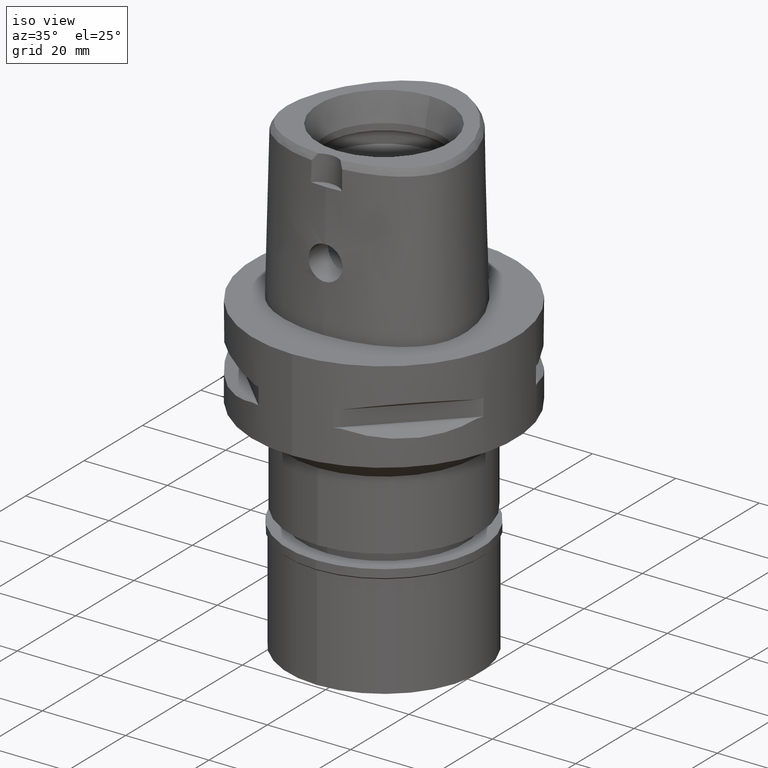
[diagram: clean part render]
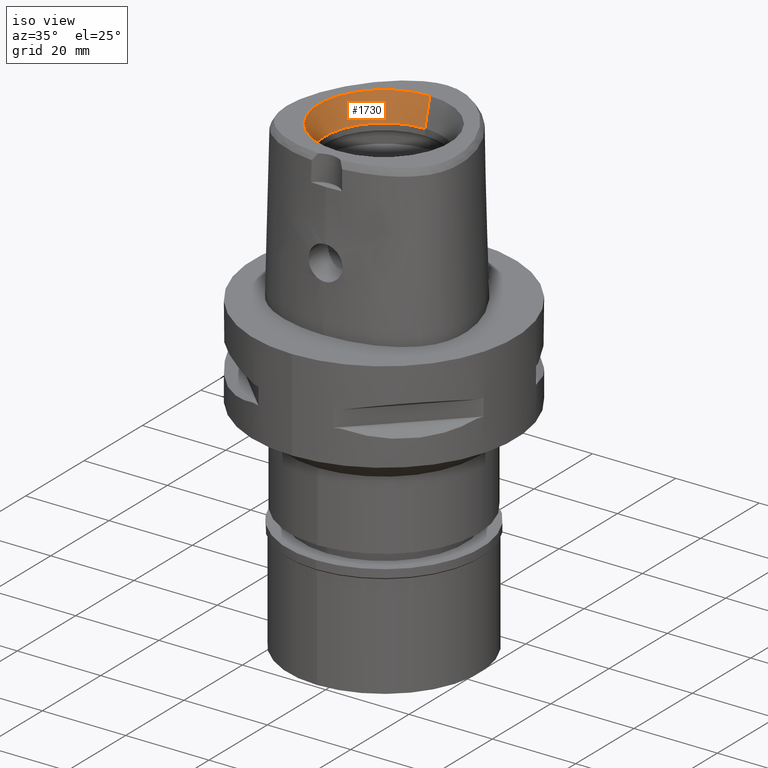
[diagram: same view with one face highlighted and labeled with its STEP entity id]
A machine part, iso view. The second image highlights one B-rep face of the part: STEP entity #1730.
In plain terms, the highlighted conical surface has half-angle 15 deg.
Its self-contained STEP definition (entity closure, byte-faithful):
#140 = DIRECTION ( 'NONE',  ( 0.0000000000000000000, 0.0000000000000000000, 1.000000000000000000 ) ) ;
#147 = VERTEX_POINT ( 'NONE', #2814 ) ;
#186 = CONICAL_SURFACE ( 'NONE', #4481, 14.85743741577999977, 0.2617993877991000029 ) ;
#197 = CIRCLE ( 'NONE', #2932, 15.71487483155999776 ) ;
#325 = ORIENTED_EDGE ( 'NONE', *, *, #4198, .F. ) ;
#556 = DIRECTION ( 'NONE',  ( 0.0000000000000000000, 0.2588190451025869088, 0.9659258262890505486 ) ) ;
#753 = CARTESIAN_POINT ( 'NONE',  ( 0.0000000000000000000, -14.00000000000000000, 31.60000000000000142 ) ) ;
#853 = CARTESIAN_POINT ( 'NONE',  ( 0.0000000000000000000, 14.00000000000000000, 31.60000000000000142 ) ) ;
#1094 = DIRECTION ( 'NONE',  ( 0.0000000000000000000, -0.2588190451025869088, 0.9659258262890505486 ) ) ;
#1326 = EDGE_LOOP ( 'NONE', ( #1563, #325, #3998, #3038 ) ) ;
#1547 = DIRECTION ( 'NONE',  ( 0.0000000000000000000, 1.000000000000000000, 0.0000000000000000000 ) ) ;
#1563 = ORIENTED_EDGE ( 'NONE', *, *, #4060, .F. ) ;
#1648 = CARTESIAN_POINT ( 'NONE',  ( 0.0000000000000000000, 0.0000000000000000000, 38.00000000000000000 ) ) ;
#1730 = ADVANCED_FACE ( 'NONE', ( #2651 ), #186, .F. ) ;
#1832 = CARTESIAN_POINT ( 'NONE',  ( 0.0000000000000000000, 14.00000000000000000, 31.60000000000000142 ) ) ;
#2180 = DIRECTION ( 'NONE',  ( 0.0000000000000000000, 0.0000000000000000000, 1.000000000000000000 ) ) ;
#2440 = DIRECTION ( 'NONE',  ( 0.0000000000000000000, 1.000000000000000000, 0.0000000000000000000 ) ) ;
#2555 = CIRCLE ( 'NONE', #2703, 14.00000000000000000 ) ;
#2651 = FACE_OUTER_BOUND ( 'NONE', #1326, .T. ) ;
#2703 = AXIS2_PLACEMENT_3D ( 'NONE', #3595, #2180, #3654 ) ;
#2769 = VERTEX_POINT ( 'NONE', #3737 ) ;
#2814 = CARTESIAN_POINT ( 'NONE',  ( 0.0000000000000000000, -14.00000000000000000, 31.60000000000000142 ) ) ;
#2932 = AXIS2_PLACEMENT_3D ( 'NONE', #1648, #140, #2440 ) ;
#3022 = EDGE_CURVE ( 'NONE', #4119, #3855, #3552, .T. ) ;
#3038 = ORIENTED_EDGE ( 'NONE', *, *, #4638, .T. ) ;
#3398 = CARTESIAN_POINT ( 'NONE',  ( 0.0000000000000000000, 0.0000000000000000000, 34.79999999999999716 ) ) ;
#3419 = DIRECTION ( 'NONE',  ( 0.0000000000000000000, 0.0000000000000000000, 1.000000000000000000 ) ) ;
#3552 = LINE ( 'NONE', #853, #4146 ) ;
#3595 = CARTESIAN_POINT ( 'NONE',  ( 0.0000000000000000000, 0.0000000000000000000, 31.60000000000000142 ) ) ;
#3654 = DIRECTION ( 'NONE',  ( 0.0000000000000000000, 1.000000000000000000, 0.0000000000000000000 ) ) ;
#3737 = CARTESIAN_POINT ( 'NONE',  ( 0.0000000000000000000, -15.71487483155999776, 38.00000000000000000 ) ) ;
#3855 = VERTEX_POINT ( 'NONE', #4432 ) ;
#3998 = ORIENTED_EDGE ( 'NONE', *, *, #3022, .T. ) ;
#4060 = EDGE_CURVE ( 'NONE', #147, #2769, #4367, .T. ) ;
#4119 = VERTEX_POINT ( 'NONE', #1832 ) ;
#4146 = VECTOR ( 'NONE', #556, 1000.000000000000000 ) ;
#4198 = EDGE_CURVE ( 'NONE', #4119, #147, #2555, .T. ) ;
#4254 = VECTOR ( 'NONE', #1094, 1000.000000000000000 ) ;
#4367 = LINE ( 'NONE', #753, #4254 ) ;
#4432 = CARTESIAN_POINT ( 'NONE',  ( 0.0000000000000000000, 15.71487483155999776, 38.00000000000000000 ) ) ;
#4481 = AXIS2_PLACEMENT_3D ( 'NONE', #3398, #3419, #1547 ) ;
#4638 = EDGE_CURVE ( 'NONE', #3855, #2769, #197, .T. ) ;